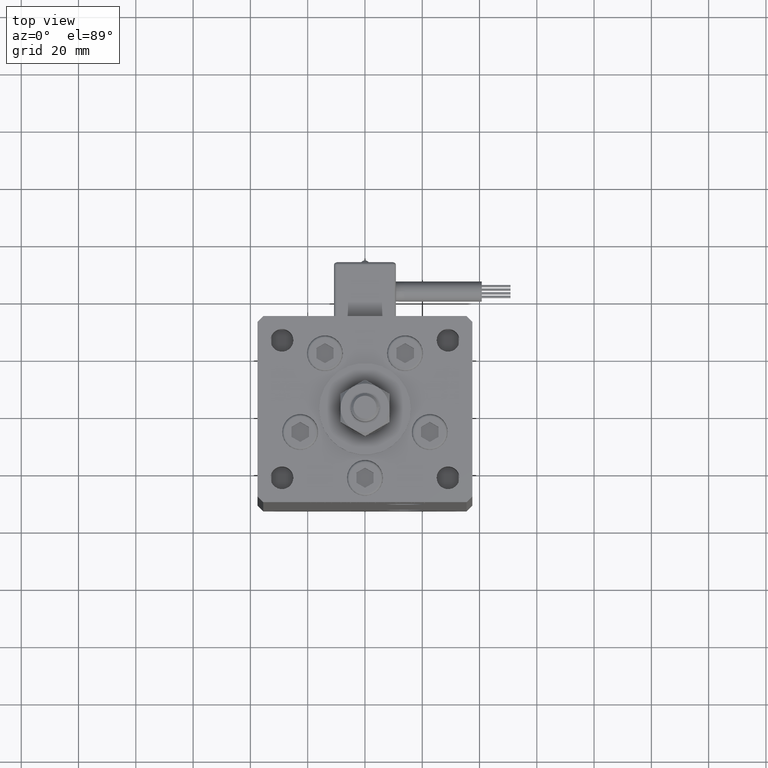
[diagram: clean part render]
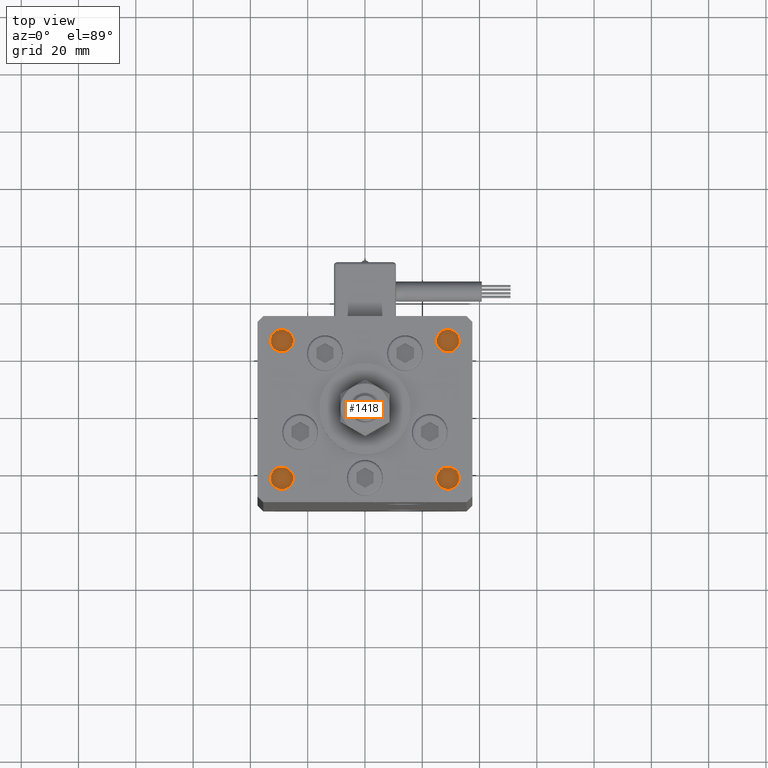
[diagram: same view with one face highlighted and labeled with its STEP entity id]
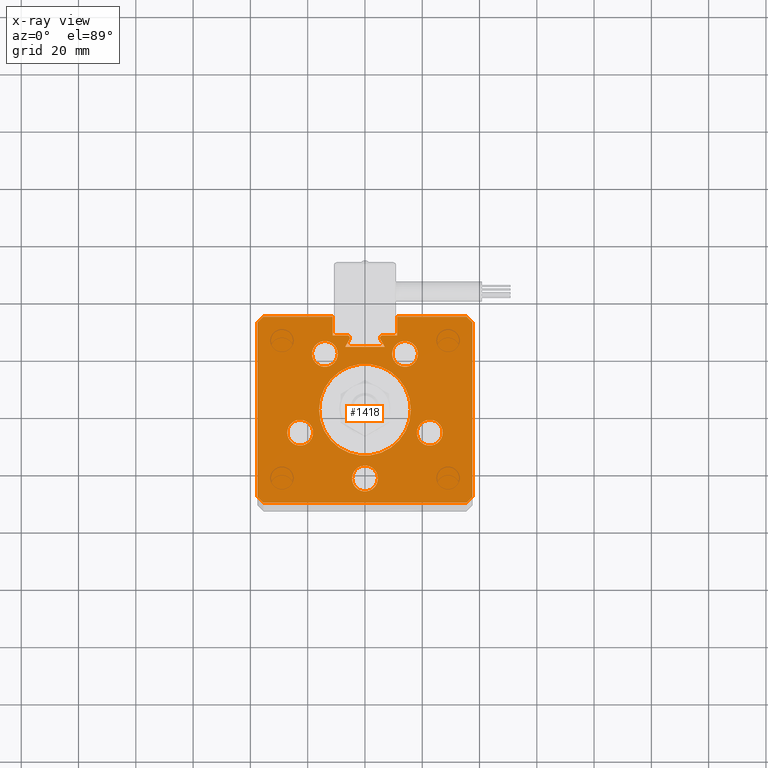
[diagram: x-ray of the same camera — body ghosted, the highlighted face saturated]
A machine part, top view. The second image highlights one B-rep face of the part: STEP entity #1418.
The next image is the same camera in x-ray: the body ghosted, the highlighted face saturated — about 0% of this face is hidden behind the body in this view.
In plain terms, the highlighted planar face has unit normal (0, 0, -1).
Its self-contained STEP definition (entity closure, byte-faithful):
#497 = EDGE_LOOP ( 'NONE', ( #40351, #8404 ) ) ;
#528 = LINE ( 'NONE', #5387, #1559 ) ;
#551 = ORIENTED_EDGE ( 'NONE', *, *, #8842, .T. ) ;
#680 = VERTEX_POINT ( 'NONE', #1004 ) ;
#766 = VERTEX_POINT ( 'NONE', #37680 ) ;
#840 = LINE ( 'NONE', #39842, #4151 ) ;
#954 = CARTESIAN_POINT ( 'NONE',  ( -37.49999999999999289, -30.50000000000000000, 156.0000000000000000 ) ) ;
#1004 = CARTESIAN_POINT ( 'NONE',  ( 35.49999999999999289, -32.50000000000000000, 156.0000000000000000 ) ) ;
#1189 = DIRECTION ( 'NONE',  ( 0.000000000000000000, 0.000000000000000000, -1.000000000000000000 ) ) ;
#1342 = EDGE_CURVE ( 'NONE', #43895, #40544, #22798, .T. ) ;
#1418 = ADVANCED_FACE ( 'NONE', ( #2767, #55537, #15960, #46950, #42637, #38045, #15677 ), #3342, .F. ) ;
#1559 = VECTOR ( 'NONE', #22906, 1000.000000000000000 ) ;
#1756 = ORIENTED_EDGE ( 'NONE', *, *, #34658, .F. ) ;
#2059 = EDGE_CURVE ( 'NONE', #40544, #43895, #37462, .T. ) ;
#2099 = CIRCLE ( 'NONE', #34176, 4.499999999999997335 ) ;
#2230 = EDGE_CURVE ( 'NONE', #51108, #41748, #43011, .T. ) ;
#2609 = CARTESIAN_POINT ( 'NONE',  ( -13.99106857963322170, 19.50000000000000000, 156.0000000000000000 ) ) ;
#2674 = EDGE_CURVE ( 'NONE', #55791, #46847, #54912, .T. ) ;
#2767 = FACE_BOUND ( 'NONE', #28555, .T. ) ;
#2959 = CIRCLE ( 'NONE', #53321, 16.00000000000000000 ) ;
#3000 = CIRCLE ( 'NONE', #6655, 0.9333333333340008142 ) ;
#3107 = DIRECTION ( 'NONE',  ( 1.000000000000000000, 0.000000000000000000, 0.000000000000000000 ) ) ;
#3211 = CIRCLE ( 'NONE', #36196, 4.500000000000000000 ) ;
#3342 = PLANE ( 'NONE',  #51186 ) ;
#3518 = ORIENTED_EDGE ( 'NONE', *, *, #43046, .F. ) ;
#3989 = VECTOR ( 'NONE', #44062, 1000.000000000000114 ) ;
#4046 = CARTESIAN_POINT ( 'NONE',  ( 0.000000000000000000, 25.99999999999999289, 156.0000000000000000 ) ) ;
#4151 = VECTOR ( 'NONE', #4297, 1000.000000000000000 ) ;
#4297 = DIRECTION ( 'NONE',  ( -0.000000000000000000, -1.000000000000000000, 0.000000000000000000 ) ) ;
#4303 = LINE ( 'NONE', #21808, #17689 ) ;
#4647 = EDGE_CURVE ( 'NONE', #12128, #13381, #50956, .T. ) ;
#4666 = CARTESIAN_POINT ( 'NONE',  ( -27.12741699796952233, -8.000000000000000000, 156.0000000000000000 ) ) ;
#5094 = CARTESIAN_POINT ( 'NONE',  ( 27.12741699796952233, -8.000000000000000000, 156.0000000000000000 ) ) ;
#5125 = VERTEX_POINT ( 'NONE', #36557 ) ;
#5387 = CARTESIAN_POINT ( 'NONE',  ( -37.50000000000000711, 30.50000000000000000, 156.0000000000000000 ) ) ;
#5715 = EDGE_CURVE ( 'NONE', #21805, #47497, #8930, .T. ) ;
#5816 = EDGE_LOOP ( 'NONE', ( #15730, #10215 ) ) ;
#5860 = EDGE_CURVE ( 'NONE', #51500, #53017, #20063, .T. ) ;
#6068 = CARTESIAN_POINT ( 'NONE',  ( 22.62741699796951877, -8.000000000000000000, 156.0000000000000000 ) ) ;
#6094 = ORIENTED_EDGE ( 'NONE', *, *, #53798, .T. ) ;
#6387 = CARTESIAN_POINT ( 'NONE',  ( -22.62741699796951877, -8.000000000000000000, 156.0000000000000000 ) ) ;
#6655 = AXIS2_PLACEMENT_3D ( 'NONE', #31607, #1189, #10657 ) ;
#6846 = EDGE_CURVE ( 'NONE', #36445, #37955, #15770, .T. ) ;
#6977 = EDGE_CURVE ( 'NONE', #55940, #766, #52172, .T. ) ;
#7229 = CARTESIAN_POINT ( 'NONE',  ( 18.49106857963322526, 19.50000000000000000, 156.0000000000000000 ) ) ;
#7289 = AXIS2_PLACEMENT_3D ( 'NONE', #56765, #44696, #14004 ) ;
#7702 = VECTOR ( 'NONE', #16146, 1000.000000000000000 ) ;
#7903 = EDGE_CURVE ( 'NONE', #30574, #20092, #31182, .T. ) ;
#7952 = EDGE_LOOP ( 'NONE', ( #41754, #49104 ) ) ;
#8025 = CARTESIAN_POINT ( 'NONE',  ( 0.000000000000000000, -24.00000000000000000, 156.0000000000000000 ) ) ;
#8404 = ORIENTED_EDGE ( 'NONE', *, *, #7903, .F. ) ;
#8663 = DIRECTION ( 'NONE',  ( 1.000000000000000000, 0.000000000000000000, 0.000000000000000000 ) ) ;
#8802 = CARTESIAN_POINT ( 'NONE',  ( -18.12741699796951877, -8.000000000000000000, 156.0000000000000000 ) ) ;
#8842 = EDGE_CURVE ( 'NONE', #35068, #37955, #13765, .T. ) ;
#8856 = CARTESIAN_POINT ( 'NONE',  ( 13.99106857963322170, 19.50000000000000000, 156.0000000000000000 ) ) ;
#8930 = LINE ( 'NONE', #26984, #13643 ) ;
#9204 = CARTESIAN_POINT ( 'NONE',  ( 14.68339468389911850, 8.477461873366667788, 156.0000000000000000 ) ) ;
#10215 = ORIENTED_EDGE ( 'NONE', *, *, #28228, .F. ) ;
#10384 = CARTESIAN_POINT ( 'NONE',  ( -13.99106857963322170, 19.50000000000000000, 156.0000000000000000 ) ) ;
#10657 = DIRECTION ( 'NONE',  ( 1.000000000000000000, 0.000000000000000000, 0.000000000000000000 ) ) ;
#10709 = CIRCLE ( 'NONE', #29019, 4.500000000000000888 ) ;
#10951 = DIRECTION ( 'NONE',  ( 0.000000000000000000, 0.000000000000000000, 1.000000000000000000 ) ) ;
#11021 = LINE ( 'NONE', #41979, #26469 ) ;
#11176 = DIRECTION ( 'NONE',  ( -2.275047181608927644E-16, -1.000000000000000000, 0.000000000000000000 ) ) ;
#11474 = CARTESIAN_POINT ( 'NONE',  ( 37.49999999999999289, -30.50000000000000000, 156.0000000000000000 ) ) ;
#11876 = DIRECTION ( 'NONE',  ( 1.000000000000000000, 0.000000000000000000, 0.000000000000000000 ) ) ;
#12128 = VERTEX_POINT ( 'NONE', #954 ) ;
#12635 = EDGE_CURVE ( 'NONE', #5125, #56599, #14824, .T. ) ;
#13204 = LINE ( 'NONE', #25560, #13605 ) ;
#13381 = VERTEX_POINT ( 'NONE', #18085 ) ;
#13605 = VECTOR ( 'NONE', #43043, 1000.000000000000000 ) ;
#13643 = VECTOR ( 'NONE', #43913, 1000.000000000000000 ) ;
#13765 = LINE ( 'NONE', #56526, #44925 ) ;
#14004 = DIRECTION ( 'NONE',  ( 1.000000000000000000, 0.000000000000000000, 0.000000000000000000 ) ) ;
#14824 = CIRCLE ( 'NONE', #25817, 4.500000000000000000 ) ;
#14962 = DIRECTION ( 'NONE',  ( 1.000000000000000000, 0.000000000000000000, 0.000000000000000000 ) ) ;
#15060 = CARTESIAN_POINT ( 'NONE',  ( 35.50000000000000000, 32.49999999999999289, 156.0000000000000000 ) ) ;
#15205 = DIRECTION ( 'NONE',  ( 0.000000000000000000, 0.000000000000000000, 1.000000000000000000 ) ) ;
#15596 = ORIENTED_EDGE ( 'NONE', *, *, #6846, .F. ) ;
#15677 = FACE_BOUND ( 'NONE', #5816, .T. ) ;
#15686 = LINE ( 'NONE', #37760, #27583 ) ;
#15730 = ORIENTED_EDGE ( 'NONE', *, *, #2230, .F. ) ;
#15770 = LINE ( 'NONE', #47613, #43944 ) ;
#15960 = FACE_BOUND ( 'NONE', #497, .T. ) ;
#15988 = ORIENTED_EDGE ( 'NONE', *, *, #6977, .F. ) ;
#16146 = DIRECTION ( 'NONE',  ( 1.000000000000000000, 0.000000000000000000, 0.000000000000000000 ) ) ;
#16262 = AXIS2_PLACEMENT_3D ( 'NONE', #28635, #50146, #24617 ) ;
#16308 = CARTESIAN_POINT ( 'NONE',  ( -11.25000000000000178, 25.99999999999999289, 156.0000000000000000 ) ) ;
#17279 = DIRECTION ( 'NONE',  ( 1.000000000000000000, 0.000000000000000000, 0.000000000000000000 ) ) ;
#17358 = EDGE_CURVE ( 'NONE', #18899, #24878, #46553, .T. ) ;
#17510 = DIRECTION ( 'NONE',  ( 0.000000000000000000, 1.000000000000000000, 0.000000000000000000 ) ) ;
#17689 = VECTOR ( 'NONE', #30711, 1000.000000000000114 ) ;
#17736 = DIRECTION ( 'NONE',  ( 0.000000000000000000, 0.000000000000000000, 1.000000000000000000 ) ) ;
#17999 = CARTESIAN_POINT ( 'NONE',  ( -5.250000000000000000, 25.06666666666599141, 156.0000000000000000 ) ) ;
#18085 = CARTESIAN_POINT ( 'NONE',  ( -35.49999999999999289, -32.50000000000000000, 156.0000000000000000 ) ) ;
#18356 = DIRECTION ( 'NONE',  ( -1.000000000000000000, 0.000000000000000000, 0.000000000000000000 ) ) ;
#18562 = EDGE_CURVE ( 'NONE', #24878, #36951, #4303, .T. ) ;
#18899 = VERTEX_POINT ( 'NONE', #29889 ) ;
#19899 = CARTESIAN_POINT ( 'NONE',  ( -18.49106857963321815, 19.50000000000000000, 156.0000000000000000 ) ) ;
#20063 = CIRCLE ( 'NONE', #30177, 4.500000000000000888 ) ;
#20070 = AXIS2_PLACEMENT_3D ( 'NONE', #51687, #38776, #8663 ) ;
#20092 = VERTEX_POINT ( 'NONE', #5094 ) ;
#20163 = CARTESIAN_POINT ( 'NONE',  ( 11.25000000000000178, 25.99999999999999289, 156.0000000000000000 ) ) ;
#20379 = CARTESIAN_POINT ( 'NONE',  ( 9.491068579633218150, 19.50000000000000000, 156.0000000000000000 ) ) ;
#20417 = DIRECTION ( 'NONE',  ( 1.000000000000000000, 0.000000000000000000, 0.000000000000000000 ) ) ;
#20842 = DIRECTION ( 'NONE',  ( 0.000000000000000000, 0.000000000000000000, -1.000000000000000000 ) ) ;
#21719 = LINE ( 'NONE', #31176, #3989 ) ;
#21805 = VERTEX_POINT ( 'NONE', #33024 ) ;
#21808 = CARTESIAN_POINT ( 'NONE',  ( 35.50000000000000000, 32.49999999999999289, 156.0000000000000000 ) ) ;
#22302 = ORIENTED_EDGE ( 'NONE', *, *, #39871, .T. ) ;
#22348 = CARTESIAN_POINT ( 'NONE',  ( -16.00000000000000000, 0.000000000000000000, 156.0000000000000000 ) ) ;
#22798 = CIRCLE ( 'NONE', #54835, 4.500000000000003553 ) ;
#22906 = DIRECTION ( 'NONE',  ( 2.275047181608927644E-16, -1.000000000000000000, 0.000000000000000000 ) ) ;
#23538 = CARTESIAN_POINT ( 'NONE',  ( -22.62741699796951877, -8.000000000000000000, 156.0000000000000000 ) ) ;
#24179 = DIRECTION ( 'NONE',  ( 0.000000000000000000, 0.000000000000000000, 1.000000000000000000 ) ) ;
#24617 = DIRECTION ( 'NONE',  ( 1.000000000000000000, 0.000000000000000000, 0.000000000000000000 ) ) ;
#24728 = ORIENTED_EDGE ( 'NONE', *, *, #29145, .F. ) ;
#24751 = AXIS2_PLACEMENT_3D ( 'NONE', #6068, #32744, #14962 ) ;
#24865 = CARTESIAN_POINT ( 'NONE',  ( 0.000000000000000000, 0.000000000000000000, 156.0000000000000000 ) ) ;
#24878 = VERTEX_POINT ( 'NONE', #15060 ) ;
#24927 = CARTESIAN_POINT ( 'NONE',  ( -4.500000000000000000, -24.00000000000000000, 156.0000000000000000 ) ) ;
#25208 = VECTOR ( 'NONE', #43910, 1000.000000000000114 ) ;
#25298 = AXIS2_PLACEMENT_3D ( 'NONE', #28000, #41181, #33134 ) ;
#25471 = ORIENTED_EDGE ( 'NONE', *, *, #40776, .T. ) ;
#25537 = VECTOR ( 'NONE', #49836, 1000.000000000000114 ) ;
#25560 = CARTESIAN_POINT ( 'NONE',  ( -14.68339468389911495, 8.477461873366664236, 156.0000000000000000 ) ) ;
#25817 = AXIS2_PLACEMENT_3D ( 'NONE', #8025, #37847, #47882 ) ;
#25842 = CARTESIAN_POINT ( 'NONE',  ( -11.25000000000000178, 32.49999999999999289, 156.0000000000000000 ) ) ;
#25907 = EDGE_CURVE ( 'NONE', #51040, #680, #15686, .T. ) ;
#26378 = ORIENTED_EDGE ( 'NONE', *, *, #35729, .T. ) ;
#26426 = LINE ( 'NONE', #9204, #25208 ) ;
#26469 = VECTOR ( 'NONE', #11876, 1000.000000000000000 ) ;
#26984 = CARTESIAN_POINT ( 'NONE',  ( 0.000000000000000000, 21.99999999999986855, 156.0000000000000000 ) ) ;
#27535 = LINE ( 'NONE', #52788, #30820 ) ;
#27583 = VECTOR ( 'NONE', #46378, 1000.000000000000114 ) ;
#28000 = CARTESIAN_POINT ( 'NONE',  ( 6.183333333334001480, 25.06666666666599141, 156.0000000000000000 ) ) ;
#28006 = CARTESIAN_POINT ( 'NONE',  ( -35.50000000000000000, 32.49999999999999289, 156.0000000000000000 ) ) ;
#28170 = DIRECTION ( 'NONE',  ( 1.000000000000000000, 0.000000000000000000, 0.000000000000000000 ) ) ;
#28209 = ORIENTED_EDGE ( 'NONE', *, *, #5860, .F. ) ;
#28228 = EDGE_CURVE ( 'NONE', #41748, #51108, #2959, .T. ) ;
#28555 = EDGE_LOOP ( 'NONE', ( #28209, #29127 ) ) ;
#28635 = CARTESIAN_POINT ( 'NONE',  ( 22.62741699796951877, -8.000000000000000000, 156.0000000000000000 ) ) ;
#29019 = AXIS2_PLACEMENT_3D ( 'NONE', #6387, #40809, #54290 ) ;
#29127 = ORIENTED_EDGE ( 'NONE', *, *, #43794, .F. ) ;
#29145 = EDGE_CURVE ( 'NONE', #54321, #55940, #3000, .T. ) ;
#29605 = DIRECTION ( 'NONE',  ( -1.000000000000000000, 0.000000000000000000, 0.000000000000000000 ) ) ;
#29805 = DIRECTION ( 'NONE',  ( 0.000000000000000000, 0.000000000000000000, 1.000000000000000000 ) ) ;
#29825 = CARTESIAN_POINT ( 'NONE',  ( -6.876153656360466826, 21.99999999999986855, 156.0000000000000000 ) ) ;
#29889 = CARTESIAN_POINT ( 'NONE',  ( 11.24999999999999467, 32.49999999999999289, 156.0000000000000000 ) ) ;
#29950 = DIRECTION ( 'NONE',  ( 1.000000000000000000, 0.000000000000000000, 0.000000000000000000 ) ) ;
#29988 = EDGE_CURVE ( 'NONE', #54321, #35068, #39039, .T. ) ;
#30177 = AXIS2_PLACEMENT_3D ( 'NONE', #23538, #15205, #32421 ) ;
#30280 = ORIENTED_EDGE ( 'NONE', *, *, #12635, .F. ) ;
#30574 = VERTEX_POINT ( 'NONE', #46299 ) ;
#30711 = DIRECTION ( 'NONE',  ( 0.7071067811865500152, -0.7071067811865451302, 0.000000000000000000 ) ) ;
#30765 = DIRECTION ( 'NONE',  ( -0.000000000000000000, 0.000000000000000000, 1.000000000000000000 ) ) ;
#30820 = VECTOR ( 'NONE', #18356, 1000.000000000000000 ) ;
#31055 = CARTESIAN_POINT ( 'NONE',  ( 37.50000000000000711, 30.50000000000000000, 156.0000000000000000 ) ) ;
#31176 = CARTESIAN_POINT ( 'NONE',  ( -35.50000000000000000, 32.49999999999999289, 156.0000000000000000 ) ) ;
#31182 = CIRCLE ( 'NONE', #24751, 4.500000000000000888 ) ;
#31366 = VERTEX_POINT ( 'NONE', #50389 ) ;
#31607 = CARTESIAN_POINT ( 'NONE',  ( -6.183333333334001480, 25.06666666666599141, 156.0000000000000000 ) ) ;
#32089 = ORIENTED_EDGE ( 'NONE', *, *, #18562, .F. ) ;
#32303 = EDGE_LOOP ( 'NONE', ( #30280, #35060 ) ) ;
#32421 = DIRECTION ( 'NONE',  ( 1.000000000000000000, 0.000000000000000000, 0.000000000000000000 ) ) ;
#32744 = DIRECTION ( 'NONE',  ( 0.000000000000000000, 0.000000000000000000, 1.000000000000000000 ) ) ;
#32783 = CARTESIAN_POINT ( 'NONE',  ( 13.99106857963322170, 19.50000000000000000, 156.0000000000000000 ) ) ;
#33024 = CARTESIAN_POINT ( 'NONE',  ( 6.876153656360466826, 21.99999999999986855, 156.0000000000000000 ) ) ;
#33134 = DIRECTION ( 'NONE',  ( 1.000000000000000000, 0.000000000000000000, 0.000000000000000000 ) ) ;
#33179 = CARTESIAN_POINT ( 'NONE',  ( -37.49999999999999289, -30.50000000000000000, 156.0000000000000000 ) ) ;
#34176 = AXIS2_PLACEMENT_3D ( 'NONE', #2609, #10951, #28170 ) ;
#34229 = CARTESIAN_POINT ( 'NONE',  ( 0.000000000000000000, -24.00000000000000000, 156.0000000000000000 ) ) ;
#34643 = ORIENTED_EDGE ( 'NONE', *, *, #4647, .T. ) ;
#34658 = EDGE_CURVE ( 'NONE', #46847, #55791, #2099, .T. ) ;
#35060 = ORIENTED_EDGE ( 'NONE', *, *, #40432, .F. ) ;
#35068 = VERTEX_POINT ( 'NONE', #16308 ) ;
#35228 = DIRECTION ( 'NONE',  ( 1.000000000000000000, 0.000000000000000000, 0.000000000000000000 ) ) ;
#35729 = EDGE_CURVE ( 'NONE', #36445, #31366, #21719, .T. ) ;
#36196 = AXIS2_PLACEMENT_3D ( 'NONE', #34229, #51717, #29950 ) ;
#36416 = ORIENTED_EDGE ( 'NONE', *, *, #47343, .T. ) ;
#36445 = VERTEX_POINT ( 'NONE', #28006 ) ;
#36557 = CARTESIAN_POINT ( 'NONE',  ( 4.500000000000000000, -24.00000000000000000, 156.0000000000000000 ) ) ;
#36736 = VERTEX_POINT ( 'NONE', #53750 ) ;
#36951 = VERTEX_POINT ( 'NONE', #31055 ) ;
#37462 = CIRCLE ( 'NONE', #44809, 4.500000000000003553 ) ;
#37680 = CARTESIAN_POINT ( 'NONE',  ( -5.375042956467946276, 24.59999999999899245, 156.0000000000000000 ) ) ;
#37760 = CARTESIAN_POINT ( 'NONE',  ( 37.49999999999999289, -30.50000000000000000, 156.0000000000000000 ) ) ;
#37847 = DIRECTION ( 'NONE',  ( 0.000000000000000000, 0.000000000000000000, 1.000000000000000000 ) ) ;
#37930 = CARTESIAN_POINT ( 'NONE',  ( 0.000000000000000000, 0.000000000000000000, 156.0000000000000000 ) ) ;
#37955 = VERTEX_POINT ( 'NONE', #25842 ) ;
#38045 = FACE_OUTER_BOUND ( 'NONE', #42020, .T. ) ;
#38649 = ORIENTED_EDGE ( 'NONE', *, *, #52382, .T. ) ;
#38776 = DIRECTION ( 'NONE',  ( -0.000000000000000000, 0.000000000000000000, 1.000000000000000000 ) ) ;
#38982 = CARTESIAN_POINT ( 'NONE',  ( 16.00000000000000000, 1.959434878635765131E-15, 156.0000000000000000 ) ) ;
#39039 = LINE ( 'NONE', #4046, #54320 ) ;
#39225 = EDGE_LOOP ( 'NONE', ( #44220, #1756 ) ) ;
#39842 = CARTESIAN_POINT ( 'NONE',  ( 11.25000000000000178, 0.000000000000000000, 156.0000000000000000 ) ) ;
#39871 = EDGE_CURVE ( 'NONE', #18899, #52050, #840, .T. ) ;
#40351 = ORIENTED_EDGE ( 'NONE', *, *, #46219, .F. ) ;
#40432 = EDGE_CURVE ( 'NONE', #56599, #5125, #3211, .T. ) ;
#40544 = VERTEX_POINT ( 'NONE', #20379 ) ;
#40776 = EDGE_CURVE ( 'NONE', #56457, #21805, #26426, .T. ) ;
#40809 = DIRECTION ( 'NONE',  ( 0.000000000000000000, 0.000000000000000000, 1.000000000000000000 ) ) ;
#40832 = ORIENTED_EDGE ( 'NONE', *, *, #29988, .T. ) ;
#40988 = CIRCLE ( 'NONE', #16262, 4.500000000000000888 ) ;
#40989 = CARTESIAN_POINT ( 'NONE',  ( -9.491068579633225255, 19.50000000000000000, 156.0000000000000000 ) ) ;
#41181 = DIRECTION ( 'NONE',  ( 0.000000000000000000, 0.000000000000000000, -1.000000000000000000 ) ) ;
#41199 = AXIS2_PLACEMENT_3D ( 'NONE', #10384, #29805, #3107 ) ;
#41748 = VERTEX_POINT ( 'NONE', #38982 ) ;
#41754 = ORIENTED_EDGE ( 'NONE', *, *, #1342, .F. ) ;
#41979 = CARTESIAN_POINT ( 'NONE',  ( -35.49999999999999289, -32.50000000000000000, 156.0000000000000000 ) ) ;
#42020 = EDGE_LOOP ( 'NONE', ( #40832, #551, #15596, #26378, #44993, #34643, #6094, #51560, #42529, #32089, #55161, #22302, #36416, #3518, #25471, #51839, #38649, #15988, #24728 ) ) ;
#42529 = ORIENTED_EDGE ( 'NONE', *, *, #48231, .F. ) ;
#42637 = FACE_BOUND ( 'NONE', #39225, .T. ) ;
#42764 = VECTOR ( 'NONE', #11176, 1000.000000000000000 ) ;
#42892 = CARTESIAN_POINT ( 'NONE',  ( -6.183333333334001480, 25.99999999999999289, 156.0000000000000000 ) ) ;
#43011 = CIRCLE ( 'NONE', #20070, 16.00000000000000000 ) ;
#43043 = DIRECTION ( 'NONE',  ( 0.4999999999999995559, 0.8660254037844389297, 0.000000000000000000 ) ) ;
#43046 = EDGE_CURVE ( 'NONE', #56457, #36736, #50043, .T. ) ;
#43794 = EDGE_CURVE ( 'NONE', #53017, #51500, #10709, .T. ) ;
#43895 = VERTEX_POINT ( 'NONE', #7229 ) ;
#43910 = DIRECTION ( 'NONE',  ( 0.4999999999999996114, -0.8660254037844388186, 0.000000000000000000 ) ) ;
#43913 = DIRECTION ( 'NONE',  ( -1.000000000000000000, 0.000000000000000000, 0.000000000000000000 ) ) ;
#43944 = VECTOR ( 'NONE', #56204, 1000.000000000000000 ) ;
#44062 = DIRECTION ( 'NONE',  ( -0.7071067811865500152, -0.7071067811865451302, 0.000000000000000000 ) ) ;
#44220 = ORIENTED_EDGE ( 'NONE', *, *, #2674, .F. ) ;
#44696 = DIRECTION ( 'NONE',  ( 0.000000000000000000, 0.000000000000000000, -1.000000000000000000 ) ) ;
#44809 = AXIS2_PLACEMENT_3D ( 'NONE', #32783, #24179, #20417 ) ;
#44925 = VECTOR ( 'NONE', #17510, 1000.000000000000000 ) ;
#44993 = ORIENTED_EDGE ( 'NONE', *, *, #48473, .T. ) ;
#46089 = DIRECTION ( 'NONE',  ( -1.000000000000000000, 0.000000000000000000, -0.000000000000000000 ) ) ;
#46219 = EDGE_CURVE ( 'NONE', #20092, #30574, #40988, .T. ) ;
#46299 = CARTESIAN_POINT ( 'NONE',  ( 18.12741699796951877, -8.000000000000000000, 156.0000000000000000 ) ) ;
#46378 = DIRECTION ( 'NONE',  ( -0.7071067811865474617, -0.7071067811865474617, 0.000000000000000000 ) ) ;
#46553 = LINE ( 'NONE', #55432, #7702 ) ;
#46847 = VERTEX_POINT ( 'NONE', #19899 ) ;
#46950 = FACE_BOUND ( 'NONE', #7952, .T. ) ;
#47343 = EDGE_CURVE ( 'NONE', #52050, #36736, #27535, .T. ) ;
#47497 = VERTEX_POINT ( 'NONE', #29825 ) ;
#47613 = CARTESIAN_POINT ( 'NONE',  ( -11.25000000000000178, 32.49999999999999289, 156.0000000000000000 ) ) ;
#47882 = DIRECTION ( 'NONE',  ( 1.000000000000000000, 0.000000000000000000, 0.000000000000000000 ) ) ;
#48231 = EDGE_CURVE ( 'NONE', #36951, #51040, #55054, .T. ) ;
#48473 = EDGE_CURVE ( 'NONE', #31366, #12128, #528, .T. ) ;
#49104 = ORIENTED_EDGE ( 'NONE', *, *, #2059, .F. ) ;
#49836 = DIRECTION ( 'NONE',  ( 0.7071067811865474617, -0.7071067811865474617, 0.000000000000000000 ) ) ;
#50043 = CIRCLE ( 'NONE', #25298, 0.9333333333340008142 ) ;
#50146 = DIRECTION ( 'NONE',  ( 0.000000000000000000, 0.000000000000000000, 1.000000000000000000 ) ) ;
#50389 = CARTESIAN_POINT ( 'NONE',  ( -37.50000000000000711, 30.50000000000000000, 156.0000000000000000 ) ) ;
#50755 = CARTESIAN_POINT ( 'NONE',  ( 37.50000000000000711, 30.50000000000000000, 156.0000000000000000 ) ) ;
#50956 = LINE ( 'NONE', #33179, #25537 ) ;
#51040 = VERTEX_POINT ( 'NONE', #11474 ) ;
#51108 = VERTEX_POINT ( 'NONE', #22348 ) ;
#51186 = AXIS2_PLACEMENT_3D ( 'NONE', #24865, #20842, #46089 ) ;
#51500 = VERTEX_POINT ( 'NONE', #8802 ) ;
#51560 = ORIENTED_EDGE ( 'NONE', *, *, #25907, .F. ) ;
#51687 = CARTESIAN_POINT ( 'NONE',  ( 0.000000000000000000, 0.000000000000000000, 156.0000000000000000 ) ) ;
#51717 = DIRECTION ( 'NONE',  ( 0.000000000000000000, 0.000000000000000000, 1.000000000000000000 ) ) ;
#51839 = ORIENTED_EDGE ( 'NONE', *, *, #5715, .T. ) ;
#52050 = VERTEX_POINT ( 'NONE', #20163 ) ;
#52172 = CIRCLE ( 'NONE', #7289, 0.9333333333340008142 ) ;
#52382 = EDGE_CURVE ( 'NONE', #47497, #766, #13204, .T. ) ;
#52788 = CARTESIAN_POINT ( 'NONE',  ( 0.000000000000000000, 25.99999999999999289, 156.0000000000000000 ) ) ;
#53017 = VERTEX_POINT ( 'NONE', #4666 ) ;
#53321 = AXIS2_PLACEMENT_3D ( 'NONE', #37930, #30765, #17279 ) ;
#53750 = CARTESIAN_POINT ( 'NONE',  ( 6.183333333334001480, 25.99999999999999289, 156.0000000000000000 ) ) ;
#53798 = EDGE_CURVE ( 'NONE', #13381, #680, #11021, .T. ) ;
#54290 = DIRECTION ( 'NONE',  ( 1.000000000000000000, 0.000000000000000000, 0.000000000000000000 ) ) ;
#54320 = VECTOR ( 'NONE', #29605, 1000.000000000000000 ) ;
#54321 = VERTEX_POINT ( 'NONE', #42892 ) ;
#54835 = AXIS2_PLACEMENT_3D ( 'NONE', #8856, #17736, #35228 ) ;
#54912 = CIRCLE ( 'NONE', #41199, 4.499999999999997335 ) ;
#55054 = LINE ( 'NONE', #50755, #42764 ) ;
#55161 = ORIENTED_EDGE ( 'NONE', *, *, #17358, .F. ) ;
#55432 = CARTESIAN_POINT ( 'NONE',  ( -11.25000000000000178, 32.49999999999999289, 156.0000000000000000 ) ) ;
#55537 = FACE_BOUND ( 'NONE', #32303, .T. ) ;
#55791 = VERTEX_POINT ( 'NONE', #40989 ) ;
#55940 = VERTEX_POINT ( 'NONE', #17999 ) ;
#56029 = CARTESIAN_POINT ( 'NONE',  ( 5.375042956467948052, 24.59999999999899245, 156.0000000000000000 ) ) ;
#56204 = DIRECTION ( 'NONE',  ( 1.000000000000000000, 0.000000000000000000, 0.000000000000000000 ) ) ;
#56457 = VERTEX_POINT ( 'NONE', #56029 ) ;
#56526 = CARTESIAN_POINT ( 'NONE',  ( -11.25000000000000178, 0.000000000000000000, 156.0000000000000000 ) ) ;
#56599 = VERTEX_POINT ( 'NONE', #24927 ) ;
#56765 = CARTESIAN_POINT ( 'NONE',  ( -6.183333333334001480, 25.06666666666599141, 156.0000000000000000 ) ) ;